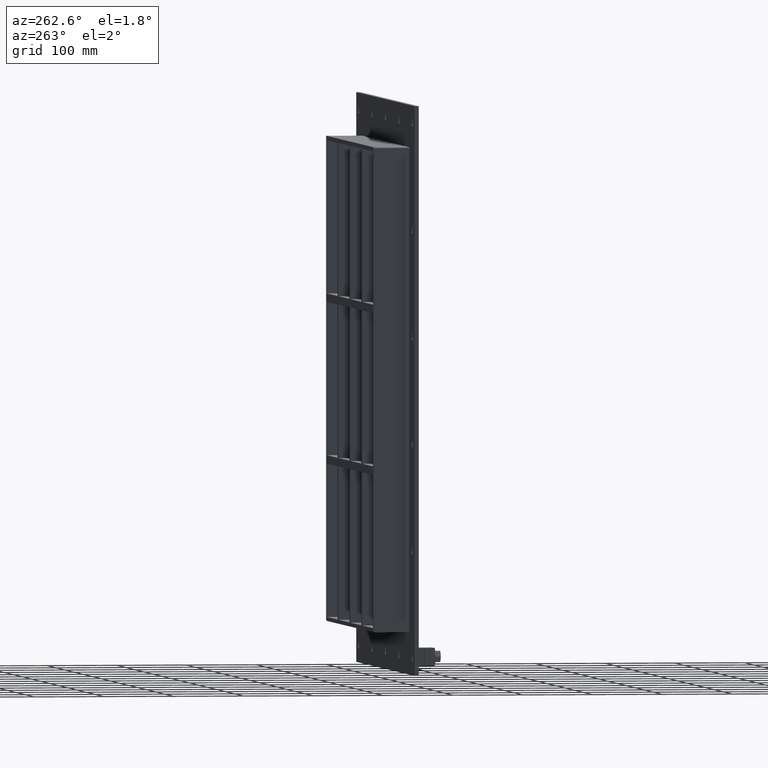
[diagram: clean part render]
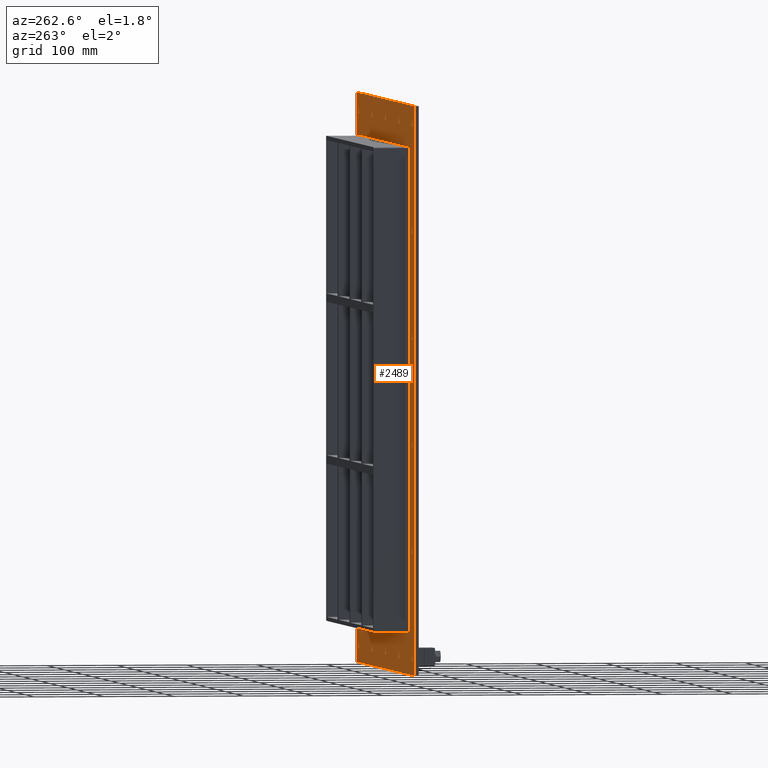
[diagram: same view with one face highlighted and labeled with its STEP entity id]
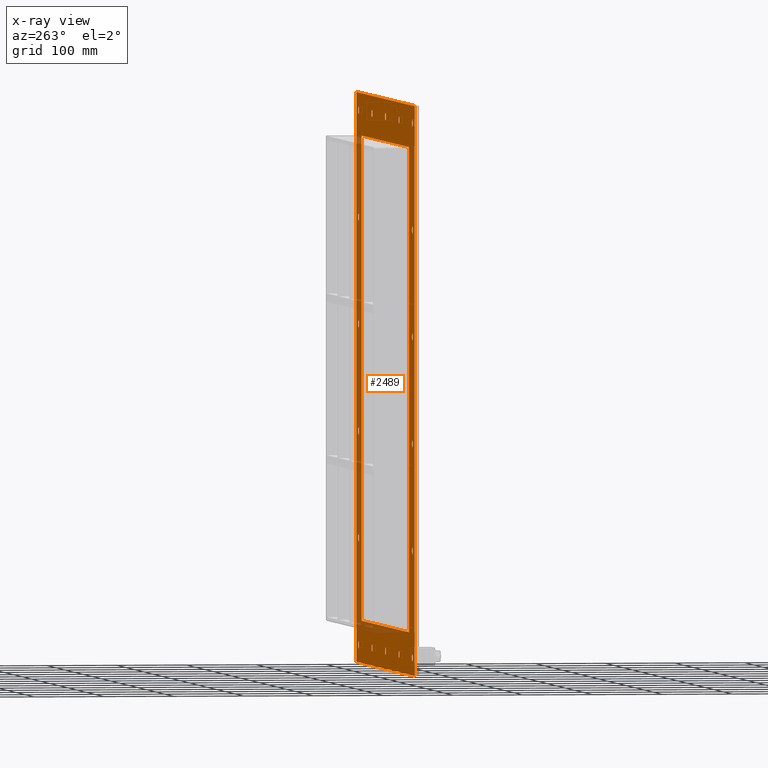
[diagram: x-ray of the same camera — body ghosted, the highlighted face saturated]
A machine part, auxiliary view. The second image highlights one B-rep face of the part: STEP entity #2489.
The next image is the same camera in x-ray: the body ghosted, the highlighted face saturated — about 27% of this face is hidden behind the body in this view.
In plain terms, the highlighted planar face has unit normal (0, 1, 0).
Its self-contained STEP definition (entity closure, byte-faithful):
#73=CARTESIAN_POINT('',(-302.00000000000023,5.999999999999943,-380.0));
#74=VERTEX_POINT('',#73);
#75=CARTESIAN_POINT('',(-297.00000000000023,5.999999999999943,-380.0));
#76=DIRECTION('',(0.0,-1.0,0.0));
#77=DIRECTION('',(1.0,0.0,0.0));
#78=AXIS2_PLACEMENT_3D('',#75,#76,#77);
#79=CIRCLE('',#78,5.0);
#80=EDGE_CURVE('',#74,#74,#79,.T.);
#101=CARTESIAN_POINT('',(291.99999999999983,5.999999999999943,-228.00000000000006));
#102=VERTEX_POINT('',#101);
#103=CARTESIAN_POINT('',(296.99999999999983,5.999999999999943,-228.00000000000006));
#104=DIRECTION('',(0.0,-1.0,0.0));
#105=DIRECTION('',(1.0,0.0,0.0));
#106=AXIS2_PLACEMENT_3D('',#103,#104,#105);
#107=CIRCLE('',#106,5.0);
#108=EDGE_CURVE('',#102,#102,#107,.T.);
#129=CARTESIAN_POINT('',(-302.00000000000023,5.999999999999943,-228.00000000000006));
#130=VERTEX_POINT('',#129);
#131=CARTESIAN_POINT('',(-297.00000000000023,5.999999999999943,-228.00000000000006));
#132=DIRECTION('',(0.0,-1.0,0.0));
#133=DIRECTION('',(1.0,0.0,0.0));
#134=AXIS2_PLACEMENT_3D('',#131,#132,#133);
#135=CIRCLE('',#134,5.0);
#136=EDGE_CURVE('',#130,#130,#135,.T.);
#157=CARTESIAN_POINT('',(291.99999999999983,5.999999999999943,-76.0));
#158=VERTEX_POINT('',#157);
#159=CARTESIAN_POINT('',(296.99999999999983,5.999999999999943,-76.0));
#160=DIRECTION('',(0.0,-1.0,0.0));
#161=DIRECTION('',(1.0,0.0,0.0));
#162=AXIS2_PLACEMENT_3D('',#159,#160,#161);
#163=CIRCLE('',#162,5.0);
#164=EDGE_CURVE('',#158,#158,#163,.T.);
#185=CARTESIAN_POINT('',(-302.00000000000023,5.999999999999943,-76.0));
#186=VERTEX_POINT('',#185);
#187=CARTESIAN_POINT('',(-297.00000000000023,5.999999999999943,-76.0));
#188=DIRECTION('',(0.0,-1.0,0.0));
#189=DIRECTION('',(1.0,0.0,0.0));
#190=AXIS2_PLACEMENT_3D('',#187,#188,#189);
#191=CIRCLE('',#190,5.0);
#192=EDGE_CURVE('',#186,#186,#191,.T.);
#213=CARTESIAN_POINT('',(291.99999999999983,5.999999999999943,75.999999999999957));
#214=VERTEX_POINT('',#213);
#215=CARTESIAN_POINT('',(296.99999999999983,5.999999999999943,75.999999999999957));
#216=DIRECTION('',(0.0,-1.0,0.0));
#217=DIRECTION('',(1.0,0.0,0.0));
#218=AXIS2_PLACEMENT_3D('',#215,#216,#217);
#219=CIRCLE('',#218,5.0);
#220=EDGE_CURVE('',#214,#214,#219,.T.);
#241=CARTESIAN_POINT('',(-302.00000000000023,5.999999999999943,75.999999999999957));
#242=VERTEX_POINT('',#241);
#243=CARTESIAN_POINT('',(-297.00000000000023,5.999999999999943,75.999999999999957));
#244=DIRECTION('',(0.0,-1.0,0.0));
#245=DIRECTION('',(1.0,0.0,0.0));
#246=AXIS2_PLACEMENT_3D('',#243,#244,#245);
#247=CIRCLE('',#246,5.0);
#248=EDGE_CURVE('',#242,#242,#247,.T.);
#269=CARTESIAN_POINT('',(291.99999999999983,5.999999999999943,227.99999999999997));
#270=VERTEX_POINT('',#269);
#271=CARTESIAN_POINT('',(296.99999999999983,5.999999999999943,227.99999999999997));
#272=DIRECTION('',(0.0,-1.0,0.0));
#273=DIRECTION('',(1.0,0.0,0.0));
#274=AXIS2_PLACEMENT_3D('',#271,#272,#273);
#275=CIRCLE('',#274,5.0);
#276=EDGE_CURVE('',#270,#270,#275,.T.);
#297=CARTESIAN_POINT('',(-302.00000000000023,5.999999999999943,227.99999999999997));
#298=VERTEX_POINT('',#297);
#299=CARTESIAN_POINT('',(-297.00000000000023,5.999999999999943,227.99999999999997));
#300=DIRECTION('',(0.0,-1.0,0.0));
#301=DIRECTION('',(1.0,0.0,0.0));
#302=AXIS2_PLACEMENT_3D('',#299,#300,#301);
#303=CIRCLE('',#302,5.0);
#304=EDGE_CURVE('',#298,#298,#303,.T.);
#325=CARTESIAN_POINT('',(-153.5000000000002,5.999999999999943,380.0));
#326=VERTEX_POINT('',#325);
#327=CARTESIAN_POINT('',(-148.5000000000002,5.999999999999943,380.0));
#328=DIRECTION('',(0.0,-1.0,0.0));
#329=DIRECTION('',(1.0,0.0,0.0));
#330=AXIS2_PLACEMENT_3D('',#327,#328,#329);
#331=CIRCLE('',#330,5.0);
#332=EDGE_CURVE('',#326,#326,#331,.T.);
#353=CARTESIAN_POINT('',(-153.50000000000017,5.999999999999943,-380.0));
#354=VERTEX_POINT('',#353);
#355=CARTESIAN_POINT('',(-148.50000000000017,5.999999999999943,-380.0));
#356=DIRECTION('',(0.0,-1.0,0.0));
#357=DIRECTION('',(1.0,0.0,0.0));
#358=AXIS2_PLACEMENT_3D('',#355,#356,#357);
#359=CIRCLE('',#358,5.0);
#360=EDGE_CURVE('',#354,#354,#359,.T.);
#381=CARTESIAN_POINT('',(-5.000000000000178,5.999999999999943,380.0));
#382=VERTEX_POINT('',#381);
#383=CARTESIAN_POINT('',(-1.776357E-013,5.999999999999943,380.0));
#384=DIRECTION('',(0.0,-1.0,0.0));
#385=DIRECTION('',(1.0,0.0,0.0));
#386=AXIS2_PLACEMENT_3D('',#383,#384,#385);
#387=CIRCLE('',#386,5.0);
#388=EDGE_CURVE('',#382,#382,#387,.T.);
#409=CARTESIAN_POINT('',(-5.000000000000142,5.999999999999943,-380.0));
#410=VERTEX_POINT('',#409);
#411=CARTESIAN_POINT('',(-1.421085E-013,5.999999999999943,-380.0));
#412=DIRECTION('',(0.0,-1.0,0.0));
#413=DIRECTION('',(1.0,0.0,0.0));
#414=AXIS2_PLACEMENT_3D('',#411,#412,#413);
#415=CIRCLE('',#414,5.0);
#416=EDGE_CURVE('',#410,#410,#415,.T.);
#437=CARTESIAN_POINT('',(143.49999999999983,5.999999999999943,380.0));
#438=VERTEX_POINT('',#437);
#439=CARTESIAN_POINT('',(148.49999999999983,5.999999999999943,380.0));
#440=DIRECTION('',(0.0,-1.0,0.0));
#441=DIRECTION('',(1.0,0.0,0.0));
#442=AXIS2_PLACEMENT_3D('',#439,#440,#441);
#443=CIRCLE('',#442,5.0);
#444=EDGE_CURVE('',#438,#438,#443,.T.);
#465=CARTESIAN_POINT('',(143.49999999999989,5.999999999999943,-380.0));
#466=VERTEX_POINT('',#465);
#467=CARTESIAN_POINT('',(148.49999999999989,5.999999999999943,-380.0));
#468=DIRECTION('',(0.0,-1.0,0.0));
#469=DIRECTION('',(1.0,0.0,0.0));
#470=AXIS2_PLACEMENT_3D('',#467,#468,#469);
#471=CIRCLE('',#470,5.0);
#472=EDGE_CURVE('',#466,#466,#471,.T.);
#493=CARTESIAN_POINT('',(291.99999999999989,5.999999999999943,-380.0));
#494=VERTEX_POINT('',#493);
#495=CARTESIAN_POINT('',(296.99999999999989,5.999999999999943,-380.0));
#496=DIRECTION('',(0.0,-1.0,0.0));
#497=DIRECTION('',(1.0,0.0,0.0));
#498=AXIS2_PLACEMENT_3D('',#495,#496,#497);
#499=CIRCLE('',#498,5.0);
#500=EDGE_CURVE('',#494,#494,#499,.T.);
#521=CARTESIAN_POINT('',(-302.00000000000023,5.999999999999943,380.0));
#522=VERTEX_POINT('',#521);
#523=CARTESIAN_POINT('',(-297.00000000000023,5.999999999999943,380.0));
#524=DIRECTION('',(0.0,-1.0,0.0));
#525=DIRECTION('',(1.0,0.0,0.0));
#526=AXIS2_PLACEMENT_3D('',#523,#524,#525);
#527=CIRCLE('',#526,5.0);
#528=EDGE_CURVE('',#522,#522,#527,.T.);
#549=CARTESIAN_POINT('',(291.99999999999983,5.999999999999943,380.0));
#550=VERTEX_POINT('',#549);
#551=CARTESIAN_POINT('',(296.99999999999983,5.999999999999943,380.0));
#552=DIRECTION('',(0.0,-1.0,0.0));
#553=DIRECTION('',(1.0,0.0,0.0));
#554=AXIS2_PLACEMENT_3D('',#551,#552,#553);
#555=CIRCLE('',#554,5.0);
#556=EDGE_CURVE('',#550,#550,#555,.T.);
#2326=CARTESIAN_POINT('',(-2.345671E-014,6.000000000000001,3.518506E-014));
#2327=DIRECTION('',(0.0,1.0,0.0));
#2328=DIRECTION('',(0.0,0.0,1.0));
#2329=AXIS2_PLACEMENT_3D('',#2326,#2327,#2328);
#2330=PLANE('',#2329);
#2331=CARTESIAN_POINT('',(-322.0,6.000000000000001,405.00000000000006));
#2332=VERTEX_POINT('',#2331);
#2333=CARTESIAN_POINT('',(322.0,6.000000000000001,405.00000000000006));
#2334=VERTEX_POINT('',#2333);
#2335=CARTESIAN_POINT('',(-322.0,6.000000000000001,405.00000000000006));
#2336=DIRECTION('',(1.0,0.0,0.0));
#2337=VECTOR('',#2336,644.0);
#2338=LINE('',#2335,#2337);
#2339=EDGE_CURVE('',#2332,#2334,#2338,.T.);
#2340=ORIENTED_EDGE('',*,*,#2339,.T.);
#2341=CARTESIAN_POINT('',(322.0,6.000000000000001,-404.99999999999994));
#2342=VERTEX_POINT('',#2341);
#2343=CARTESIAN_POINT('',(321.99999999999994,6.000000000000001,405.00000000000006));
#2344=DIRECTION('',(0.0,0.0,-1.0));
#2345=VECTOR('',#2344,810.0);
#2346=LINE('',#2343,#2345);
#2347=EDGE_CURVE('',#2334,#2342,#2346,.T.);
#2348=ORIENTED_EDGE('',*,*,#2347,.T.);
#2349=CARTESIAN_POINT('',(-322.0,6.000000000000001,-404.99999999999994));
#2350=VERTEX_POINT('',#2349);
#2351=CARTESIAN_POINT('',(321.99999999999994,6.000000000000001,-405.0));
#2352=DIRECTION('',(-1.0,0.0,0.0));
#2353=VECTOR('',#2352,644.0);
#2354=LINE('',#2351,#2353);
#2355=EDGE_CURVE('',#2342,#2350,#2354,.T.);
#2356=ORIENTED_EDGE('',*,*,#2355,.T.);
#2357=CARTESIAN_POINT('',(-322.0,6.000000000000001,-405.0));
#2358=DIRECTION('',(0.0,0.0,1.0));
#2359=VECTOR('',#2358,810.0);
#2360=LINE('',#2357,#2359);
#2361=EDGE_CURVE('',#2350,#2332,#2360,.T.);
#2362=ORIENTED_EDGE('',*,*,#2361,.T.);
#2363=EDGE_LOOP('',(#2340,#2348,#2356,#2362));
#2364=FACE_OUTER_BOUND('',#2363,.T.);
#2365=ORIENTED_EDGE('',*,*,#80,.T.);
#2366=EDGE_LOOP('',(#2365));
#2367=FACE_BOUND('',#2366,.T.);
#2368=ORIENTED_EDGE('',*,*,#108,.T.);
#2369=EDGE_LOOP('',(#2368));
#2370=FACE_BOUND('',#2369,.T.);
#2371=ORIENTED_EDGE('',*,*,#136,.T.);
#2372=EDGE_LOOP('',(#2371));
#2373=FACE_BOUND('',#2372,.T.);
#2374=ORIENTED_EDGE('',*,*,#164,.T.);
#2375=EDGE_LOOP('',(#2374));
#2376=FACE_BOUND('',#2375,.T.);
#2377=ORIENTED_EDGE('',*,*,#192,.T.);
#2378=EDGE_LOOP('',(#2377));
#2379=FACE_BOUND('',#2378,.T.);
#2380=ORIENTED_EDGE('',*,*,#220,.T.);
#2381=EDGE_LOOP('',(#2380));
#2382=FACE_BOUND('',#2381,.T.);
#2383=ORIENTED_EDGE('',*,*,#248,.T.);
#2384=EDGE_LOOP('',(#2383));
#2385=FACE_BOUND('',#2384,.T.);
#2386=ORIENTED_EDGE('',*,*,#276,.T.);
#2387=EDGE_LOOP('',(#2386));
#2388=FACE_BOUND('',#2387,.T.);
#2389=ORIENTED_EDGE('',*,*,#304,.T.);
#2390=EDGE_LOOP('',(#2389));
#2391=FACE_BOUND('',#2390,.T.);
#2392=ORIENTED_EDGE('',*,*,#332,.T.);
#2393=EDGE_LOOP('',(#2392));
#2394=FACE_BOUND('',#2393,.T.);
#2395=ORIENTED_EDGE('',*,*,#360,.T.);
#2396=EDGE_LOOP('',(#2395));
#2397=FACE_BOUND('',#2396,.T.);
#2398=ORIENTED_EDGE('',*,*,#388,.T.);
#2399=EDGE_LOOP('',(#2398));
#2400=FACE_BOUND('',#2399,.T.);
#2401=ORIENTED_EDGE('',*,*,#416,.T.);
#2402=EDGE_LOOP('',(#2401));
#2403=FACE_BOUND('',#2402,.T.);
#2404=ORIENTED_EDGE('',*,*,#444,.T.);
#2405=EDGE_LOOP('',(#2404));
#2406=FACE_BOUND('',#2405,.T.);
#2407=ORIENTED_EDGE('',*,*,#472,.T.);
#2408=EDGE_LOOP('',(#2407));
#2409=FACE_BOUND('',#2408,.T.);
#2410=ORIENTED_EDGE('',*,*,#500,.T.);
#2411=EDGE_LOOP('',(#2410));
#2412=FACE_BOUND('',#2411,.T.);
#2413=ORIENTED_EDGE('',*,*,#528,.T.);
#2414=EDGE_LOOP('',(#2413));
#2415=FACE_BOUND('',#2414,.T.);
#2416=ORIENTED_EDGE('',*,*,#556,.T.);
#2417=EDGE_LOOP('',(#2416));
#2418=FACE_BOUND('',#2417,.T.);
#2419=CARTESIAN_POINT('',(-262.0,6.000000000000001,343.00000000000006));
#2420=VERTEX_POINT('',#2419);
#2421=CARTESIAN_POINT('',(-260.0,6.000000000000001,345.00000000000006));
#2422=VERTEX_POINT('',#2421);
#2423=CARTESIAN_POINT('',(-260.0,6.000000000000001,343.00000000000006));
#2424=DIRECTION('',(0.0,1.0,0.0));
#2425=DIRECTION('',(-0.707106781186548,0.0,0.707106781186548));
#2426=AXIS2_PLACEMENT_3D('',#2423,#2424,#2425);
#2427=CIRCLE('',#2426,2.0);
#2428=EDGE_CURVE('',#2420,#2422,#2427,.T.);
#2429=ORIENTED_EDGE('',*,*,#2428,.F.);
#2430=CARTESIAN_POINT('',(-262.0,6.000000000000001,-343.00000000000006));
#2431=VERTEX_POINT('',#2430);
#2432=CARTESIAN_POINT('',(-262.0,6.000000000000001,-343.0));
#2433=DIRECTION('',(0.0,0.0,1.0));
#2434=VECTOR('',#2433,686.00000000000011);
#2435=LINE('',#2432,#2434);
#2436=EDGE_CURVE('',#2431,#2420,#2435,.T.);
#2437=ORIENTED_EDGE('',*,*,#2436,.F.);
#2438=CARTESIAN_POINT('',(-260.0,6.000000000000001,-345.00000000000006));
#2439=VERTEX_POINT('',#2438);
#2440=CARTESIAN_POINT('',(-260.0,6.000000000000001,-343.00000000000006));
#2441=DIRECTION('',(0.0,1.0,0.0));
#2442=DIRECTION('',(-0.707106781186548,0.0,-0.707106781186548));
#2443=AXIS2_PLACEMENT_3D('',#2440,#2441,#2442);
#2444=CIRCLE('',#2443,2.0);
#2445=EDGE_CURVE('',#2439,#2431,#2444,.T.);
#2446=ORIENTED_EDGE('',*,*,#2445,.F.);
#2447=CARTESIAN_POINT('',(260.0,6.000000000000001,-345.00000000000006));
#2448=VERTEX_POINT('',#2447);
#2449=CARTESIAN_POINT('',(260.0,6.000000000000001,-345.00000000000006));
#2450=DIRECTION('',(-1.0,0.0,0.0));
#2451=VECTOR('',#2450,520.0);
#2452=LINE('',#2449,#2451);
#2453=EDGE_CURVE('',#2448,#2439,#2452,.T.);
#2454=ORIENTED_EDGE('',*,*,#2453,.F.);
#2455=CARTESIAN_POINT('',(262.0,6.000000000000001,-343.00000000000006));
#2456=VERTEX_POINT('',#2455);
#2457=CARTESIAN_POINT('',(260.0,6.000000000000001,-343.00000000000006));
#2458=DIRECTION('',(0.0,1.0,0.0));
#2459=DIRECTION('',(0.707106781186548,0.0,-0.707106781186548));
#2460=AXIS2_PLACEMENT_3D('',#2457,#2458,#2459);
#2461=CIRCLE('',#2460,2.0);
#2462=EDGE_CURVE('',#2456,#2448,#2461,.T.);
#2463=ORIENTED_EDGE('',*,*,#2462,.F.);
#2464=CARTESIAN_POINT('',(262.0,6.000000000000001,343.00000000000006));
#2465=VERTEX_POINT('',#2464);
#2466=CARTESIAN_POINT('',(262.0,6.000000000000001,343.0));
#2467=DIRECTION('',(0.0,0.0,-1.0));
#2468=VECTOR('',#2467,686.00000000000011);
#2469=LINE('',#2466,#2468);
#2470=EDGE_CURVE('',#2465,#2456,#2469,.T.);
#2471=ORIENTED_EDGE('',*,*,#2470,.F.);
#2472=CARTESIAN_POINT('',(260.0,6.000000000000001,345.00000000000006));
#2473=VERTEX_POINT('',#2472);
#2474=CARTESIAN_POINT('',(260.0,6.000000000000001,343.00000000000006));
#2475=DIRECTION('',(0.0,1.0,0.0));
#2476=DIRECTION('',(0.707106781186548,0.0,0.707106781186548));
#2477=AXIS2_PLACEMENT_3D('',#2474,#2475,#2476);
#2478=CIRCLE('',#2477,2.0);
#2479=EDGE_CURVE('',#2473,#2465,#2478,.T.);
#2480=ORIENTED_EDGE('',*,*,#2479,.F.);
#2481=CARTESIAN_POINT('',(-260.0,6.000000000000001,345.00000000000006));
#2482=DIRECTION('',(1.0,0.0,0.0));
#2483=VECTOR('',#2482,520.0);
#2484=LINE('',#2481,#2483);
#2485=EDGE_CURVE('',#2422,#2473,#2484,.T.);
#2486=ORIENTED_EDGE('',*,*,#2485,.F.);
#2487=EDGE_LOOP('',(#2429,#2437,#2446,#2454,#2463,#2471,#2480,#2486));
#2488=FACE_BOUND('',#2487,.T.);
#2489=ADVANCED_FACE('',(#2364,#2367,#2370,#2373,#2376,#2379,#2382,#2385,#2388,#2391,#2394,#2397,#2400,#2403,#2406,#2409,#2412,#2415,#2418,#2488),#2330,.T.);